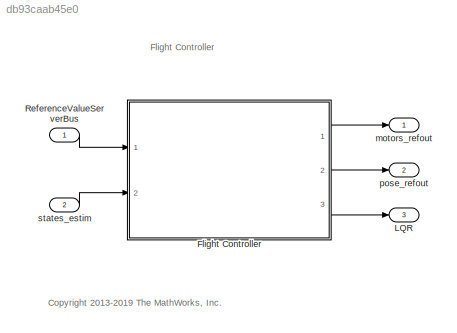
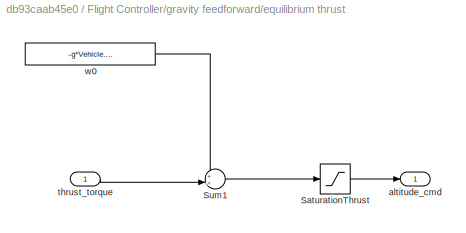
MODEL slx_db93caab45e0
KIND model
CONFIG AbsTol = auto
CONFIG EnableMultiTasking = on
CONFIG FixedStep = Ts
CONFIG MaxStep = auto
CONFIG MinStep = auto
CONFIG RelTol = 1e-3
CONFIG SampleTimeConstraint = Unconstrained
CONFIG Solver = ode3
CONFIG SolverName = ode3
CONFIG StartTime = 0
CONFIG StopTime = TFinal
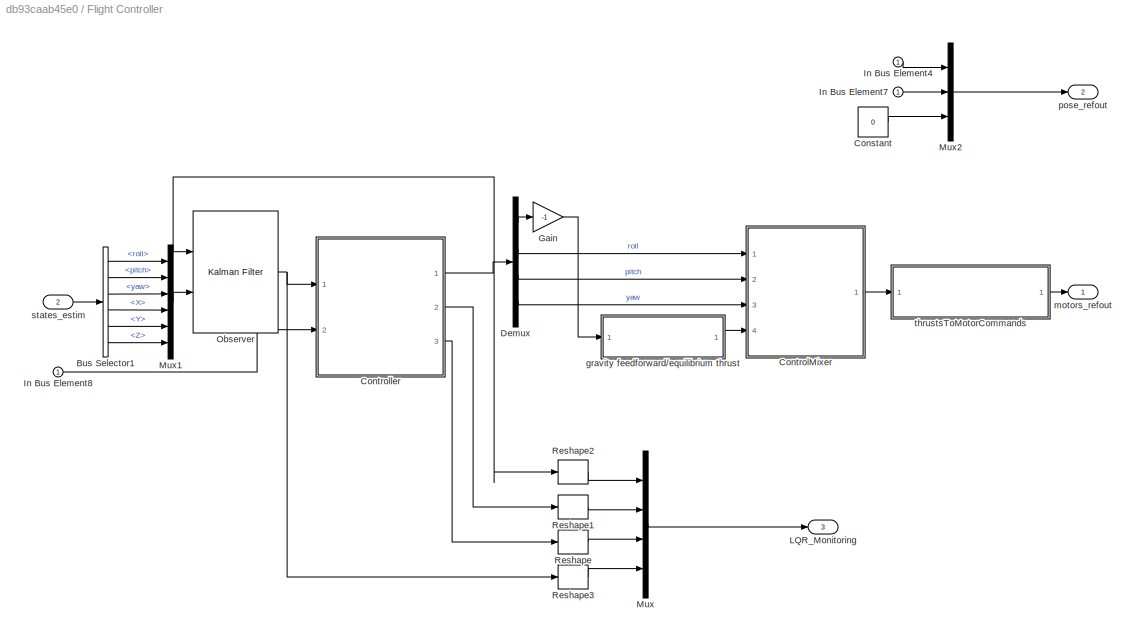
BLOCK [SubSystem] Flight Controller
  Ports = [2, 3]
  RequestExecContextInheritance = off
BLOCK [BusSelector] Flight Controller/Bus Selector1
  OutputAsBus = off
  OutputSignals = roll,pitch,yaw,X,Y,Z
  Ports = [1, 6]
BLOCK [Constant] Flight Controller/Constant
  OutDataTypeStr = single
  Value = 0
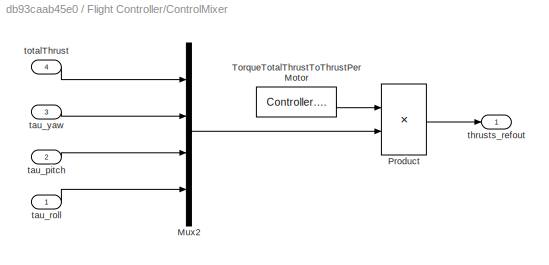
BLOCK [SubSystem] Flight Controller/ControlMixer
  Ports = [4, 1]
  RequestExecContextInheritance = off
BLOCK [Mux] Flight Controller/ControlMixer/Mux2
  DisplayOption = bar
  Ports = [4, 1]
BLOCK [Product] Flight Controller/ControlMixer/Product
  InputSameDT = off
  Multiplication = Matrix(*)
  OutDataTypeStr = Inherit: Inherit via internal rule
  Ports = [2, 1]
  SaturateOnIntegerOverflow = off
BLOCK [Constant] Flight Controller/ControlMixer/TorqueTotalThrustToThrustPerMotor
  OutDataTypeStr = single
  Value = Controller.Q2Ts
BLOCK [Inport] Flight Controller/ControlMixer/tau_pitch
  IconDisplay = Port number
  Port = 2
BLOCK [Inport] Flight Controller/ControlMixer/tau_roll
  IconDisplay = Port number
BLOCK [Inport] Flight Controller/ControlMixer/tau_yaw
  IconDisplay = Port number
  Port = 3
BLOCK [Outport] Flight Controller/ControlMixer/thrusts_refout
  IconDisplay = Port number
  VectorParamsAs1DForOutWhenUnconnected = off
BLOCK [Inport] Flight Controller/ControlMixer/totalThrust
  IconDisplay = Port number
  Port = 4
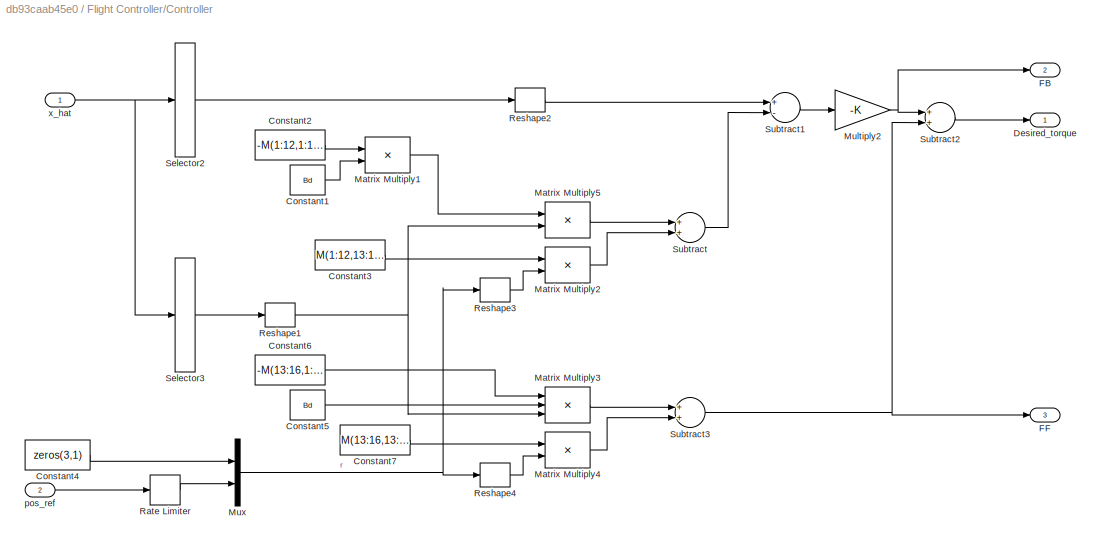
BLOCK [SubSystem] Flight Controller/Controller
  Ports = [2, 3]
  RequestExecContextInheritance = off
BLOCK [Constant] Flight Controller/Controller/Constant1
  OutDataTypeStr = single
  Value = Bd
BLOCK [Constant] Flight Controller/Controller/Constant2
  OutDataTypeStr = single
  Value = -M(1:12,1:12)
BLOCK [Constant] Flight Controller/Controller/Constant3
  OutDataTypeStr = single
  Value = M(1:12,13:18)
BLOCK [Constant] Flight Controller/Controller/Constant4
  OutDataTypeStr = single
  Value = zeros(3,1)
BLOCK [Constant] Flight Controller/Controller/Constant5
  OutDataTypeStr = single
  Value = Bd
BLOCK [Constant] Flight Controller/Controller/Constant6
  OutDataTypeStr = single
  Value = -M(13:16,1:12)
BLOCK [Constant] Flight Controller/Controller/Constant7
  OutDataTypeStr = single
  Value = M(13:16,13:18)
BLOCK [Outport] Flight Controller/Controller/Desired_torque
  IconDisplay = Port number
BLOCK [Outport] Flight Controller/Controller/FB
  IconDisplay = Port number
  Port = 2
BLOCK [Outport] Flight Controller/Controller/FF
  IconDisplay = Port number
  Port = 3
BLOCK [Product] Flight Controller/Controller/Matrix Multiply1
  InputSameDT = off
  Multiplication = Matrix(*)
  OutDataTypeStr = Inherit: Inherit via internal rule
  Ports = [2, 1]
  RndMeth = Floor
  SaturateOnIntegerOverflow = off
BLOCK [Product] Flight Controller/Controller/Matrix Multiply2
  InputSameDT = off
  Multiplication = Matrix(*)
  OutDataTypeStr = Inherit: Inherit via internal rule
  Ports = [2, 1]
  RndMeth = Floor
  SaturateOnIntegerOverflow = off
BLOCK [Product] Flight Controller/Controller/Matrix Multiply3
  InputSameDT = off
  Inputs = 3
  Multiplication = Matrix(*)
  OutDataTypeStr = Inherit: Inherit via internal rule
  Ports = [3, 1]
  RndMeth = Floor
  SaturateOnIntegerOverflow = off
BLOCK [Product] Flight Controller/Controller/Matrix Multiply4
  InputSameDT = off
  Multiplication = Matrix(*)
  OutDataTypeStr = Inherit: Inherit via internal rule
  Ports = [2, 1]
  RndMeth = Floor
  SaturateOnIntegerOverflow = off
BLOCK [Product] Flight Controller/Controller/Matrix Multiply5
  InputSameDT = off
  Multiplication = Matrix(*)
  OutDataTypeStr = Inherit: Inherit via internal rule
  Ports = [2, 1]
  RndMeth = Floor
  SaturateOnIntegerOverflow = off
BLOCK [Gain] Flight Controller/Controller/Multiply2
  Gain = -K
  Multiplication = Matrix(K*u)
  OutDataTypeStr = Inherit: Inherit via internal rule
  ParamDataTypeStr = Inherit: Inherit via internal rule
  SaturateOnIntegerOverflow = off
BLOCK [Mux] Flight Controller/Controller/Mux
  DisplayOption = bar
  Inputs = 2
  Ports = [2, 1]
BLOCK [RateLimiter] Flight Controller/Controller/Rate Limiter
  FallingSlewLimit = -2
  RisingSlewLimit = 2
  SampleTimeMode = inherited
BLOCK [Reshape] Flight Controller/Controller/Reshape1
  OutputDimensionality = Column vector (2-D)
  Ports = [1, 1]
BLOCK [Reshape] Flight Controller/Controller/Reshape2
  OutputDimensionality = Column vector (2-D)
  Ports = [1, 1]
BLOCK [Reshape] Flight Controller/Controller/Reshape3
  OutputDimensionality = Column vector (2-D)
  Ports = [1, 1]
BLOCK [Reshape] Flight Controller/Controller/Reshape4
  OutputDimensionality = Column vector (2-D)
  Ports = [1, 1]
BLOCK [Selector] Flight Controller/Controller/Selector2
  IndexOptions = Index vector (dialog)
  Indices = [1:12]
  InputPortWidth = 18
  OutputSizes = 1
  Ports = [1, 1]
BLOCK [Selector] Flight Controller/Controller/Selector3
  IndexOptions = Index vector (dialog)
  Indices = [13:18]
  InputPortWidth = 18
  OutputSizes = 1
  Ports = [1, 1]
BLOCK [Sum] Flight Controller/Controller/Subtract
  InputSameDT = off
  OutDataTypeStr = Inherit: Inherit via internal rule
  Ports = [2, 1]
  SaturateOnIntegerOverflow = off
BLOCK [Sum] Flight Controller/Controller/Subtract1
  InputSameDT = off
  Inputs = +-
  OutDataTypeStr = Inherit: Inherit via internal rule
  Ports = [2, 1]
  SaturateOnIntegerOverflow = off
BLOCK [Sum] Flight Controller/Controller/Subtract2
  InputSameDT = off
  OutDataTypeStr = Inherit: Inherit via internal rule
  Ports = [2, 1]
  SaturateOnIntegerOverflow = off
BLOCK [Sum] Flight Controller/Controller/Subtract3
  InputSameDT = off
  OutDataTypeStr = Inherit: Inherit via internal rule
  Ports = [2, 1]
  SaturateOnIntegerOverflow = off
BLOCK [Inport] Flight Controller/Controller/pos_ref
  IconDisplay = Port number
  Port = 2
BLOCK [Inport] Flight Controller/Controller/x_hat
  IconDisplay = Port number
BLOCK [Demux] Flight Controller/Demux
  DisplayOption = bar
  Ports = [1, 4]
BLOCK [Gain] Flight Controller/Gain
  Gain = -1
  OutDataTypeStr = Inherit: Inherit via internal rule
  ParamDataTypeStr = Inherit: Inherit via internal rule
  SaturateOnIntegerOverflow = off
BLOCK [Inport] Flight Controller/In Bus Element4
  IconDisplay = Port number
BLOCK [Inport] Flight Controller/In Bus Element7
  IconDisplay = Port number
BLOCK [Inport] Flight Controller/In Bus Element8
  IconDisplay = Port number
BLOCK [Outport] Flight Controller/LQR_Monitoring
  IconDisplay = Port number
  Port = 3
BLOCK [Mux] Flight Controller/Mux
  DisplayOption = bar
  Ports = [4, 1]
BLOCK [Mux] Flight Controller/Mux1
  DisplayOption = bar
  Inputs = 6
  Ports = [6, 1]
BLOCK [Mux] Flight Controller/Mux2
  DisplayOption = bar
  Inputs = 3
  Ports = [3, 1]
BLOCK [Reference] Flight Controller/Observer  REF=ctrlSharedLib/Kalman Filter
  Ports = [2, 1]
  SourceBlock = ctrlSharedLib/Kalman Filter
  SourceProductBaseCode = CT
  SourceProductName = Control System Toolbox
  SourceType = ctrlKalmanFilter
BLOCK [Reshape] Flight Controller/Reshape
  Ports = [1, 1]
BLOCK [Reshape] Flight Controller/Reshape1
  Ports = [1, 1]
BLOCK [Reshape] Flight Controller/Reshape2
  Ports = [1, 1]
BLOCK [Reshape] Flight Controller/Reshape3
  Ports = [1, 1]
BLOCK [SubSystem] Flight Controller/gravity feedforward//equilibrium thrust
  Ports = [1, 1]
  RequestExecContextInheritance = off
BLOCK [Saturate] Flight Controller/gravity feedforward//equilibrium thrust/SaturationThrust
  InputPortMap = u0
  LowerLimit = -4*Controller.totalThrustMaxRelative*Controller.motorsThrustPerMotorMax
  OutDataTypeStr = single
  Ports = [1, 1]
  UpperLimit = 4*Controller.totalThrustMaxRelative*Controller.motorsThrustPerMotorMax
BLOCK [Sum] Flight Controller/gravity feedforward//equilibrium thrust/Sum1
  AccumDataTypeStr = single
  IconShape = round
  InputSameDT = off
  Inputs = ++|
  OutDataTypeStr = single
  Ports = [2, 1]
BLOCK [Outport] Flight Controller/gravity feedforward//equilibrium thrust/altitude_cmd
  IconDisplay = Port number
  VectorParamsAs1DForOutWhenUnconnected = off
BLOCK [Inport] Flight Controller/gravity feedforward//equilibrium thrust/thrust_torque
  IconDisplay = Port number
BLOCK [Constant] Flight Controller/gravity feedforward//equilibrium thrust/w0
  OutDataTypeStr = single
  SampleTime = Ts
  Value = -g*Vehicle.Airframe.mass
BLOCK [Outport] Flight Controller/motors_refout
  IconDisplay = Port number
  VectorParamsAs1DForOutWhenUnconnected = off
BLOCK [Outport] Flight Controller/pose_refout
  IconDisplay = Port number
  Port = 2
  VectorParamsAs1DForOutWhenUnconnected = off
BLOCK [Inport] Flight Controller/states_estim
  IconDisplay = Port number
  Port = 2
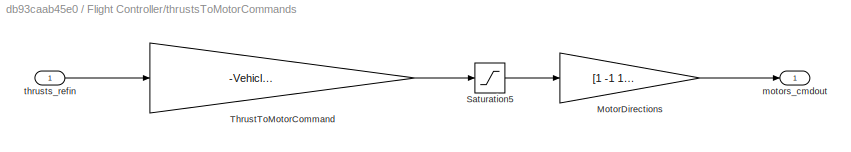
BLOCK [SubSystem] Flight Controller/thrustsToMotorCommands
  Ports = [1, 1]
  RequestExecContextInheritance = off
BLOCK [Gain] Flight Controller/thrustsToMotorCommands/MotorDirections
  Gain = [1 -1 1 -1]
  OutDataTypeStr = Inherit: Inherit via internal rule
  ParamDataTypeStr = Inherit: Inherit via internal rule
  SaturateOnIntegerOverflow = off
BLOCK [Saturate] Flight Controller/thrustsToMotorCommands/Saturation5
  InputPortMap = u0
  LowerLimit = Vehicle.Motor.minLimit
  Ports = [1, 1]
  UpperLimit = Vehicle.Motor.maxLimit
BLOCK [Gain] Flight Controller/thrustsToMotorCommands/ThrustToMotorCommand
  Gain = -Vehicle.Motor.thrustToMotorCommand
  OutDataTypeStr = Inherit: Inherit via internal rule
  ParamDataTypeStr = Inherit: Inherit via internal rule
  SaturateOnIntegerOverflow = off
BLOCK [Outport] Flight Controller/thrustsToMotorCommands/motors_cmdout
  IconDisplay = Port number
  VectorParamsAs1DForOutWhenUnconnected = off
BLOCK [Inport] Flight Controller/thrustsToMotorCommands/thrusts_refin
  IconDisplay = Port number
BLOCK [Outport] LQR
  IconDisplay = Port number
  Port = 3
BLOCK [Inport] ReferenceValueServerBus
  BusOutputAsStruct = on
  IconDisplay = Port number
  OutDataTypeStr = Bus: CommandBus
BLOCK [Outport] motors_refout
  IconDisplay = Port number
  VectorParamsAs1DForOutWhenUnconnected = off
BLOCK [Outport] pose_refout
  IconDisplay = Port number
  Port = 2
  VectorParamsAs1DForOutWhenUnconnected = off
BLOCK [Inport] states_estim
  BusOutputAsStruct = on
  IconDisplay = Port number
  OutDataTypeStr = Bus: statesEstim_t
  Port = 2
ANNOTATION (root): <copyright redacted>
ANNOTATION (root): Flight Controller
LINE Flight Controller/Bus Selector1:1 -> Flight Controller/Mux1:1
LINE Flight Controller/Bus Selector1:2 -> Flight Controller/Mux1:2
LINE Flight Controller/Bus Selector1:3 -> Flight Controller/Mux1:3
LINE Flight Controller/Bus Selector1:4 -> Flight Controller/Mux1:4
LINE Flight Controller/Bus Selector1:5 -> Flight Controller/Mux1:5
LINE Flight Controller/Bus Selector1:6 -> Flight Controller/Mux1:6
LINE Flight Controller/Constant:1 -> Flight Controller/Mux2:3
LINE Flight Controller/ControlMixer/Mux2:1 -> Flight Controller/ControlMixer/Product:2
LINE Flight Controller/ControlMixer/Product:1 -> Flight Controller/ControlMixer/thrusts_refout:1
LINE Flight Controller/ControlMixer/TorqueTotalThrustToThrustPerMotor:1 -> Flight Controller/ControlMixer/Product:1
LINE Flight Controller/ControlMixer/tau_pitch:1 -> Flight Controller/ControlMixer/Mux2:3
LINE Flight Controller/ControlMixer/tau_roll:1 -> Flight Controller/ControlMixer/Mux2:4
LINE Flight Controller/ControlMixer/tau_yaw:1 -> Flight Controller/ControlMixer/Mux2:2
LINE Flight Controller/ControlMixer/totalThrust:1 -> Flight Controller/ControlMixer/Mux2:1
LINE Flight Controller/ControlMixer:1 -> Flight Controller/thrustsToMotorCommands:1
LINE Flight Controller/Controller/Constant1:1 -> Flight Controller/Controller/Matrix Multiply1:2
LINE Flight Controller/Controller/Constant2:1 -> Flight Controller/Controller/Matrix Multiply1:1
LINE Flight Controller/Controller/Constant3:1 -> Flight Controller/Controller/Matrix Multiply2:1
LINE Flight Controller/Controller/Constant4:1 -> Flight Controller/Controller/Mux:1
LINE Flight Controller/Controller/Constant5:1 -> Flight Controller/Controller/Matrix Multiply3:2
LINE Flight Controller/Controller/Constant6:1 -> Flight Controller/Controller/Matrix Multiply3:1
LINE Flight Controller/Controller/Constant7:1 -> Flight Controller/Controller/Matrix Multiply4:1
LINE Flight Controller/Controller/Matrix Multiply1:1 -> Flight Controller/Controller/Matrix Multiply5:1
LINE Flight Controller/Controller/Matrix Multiply2:1 -> Flight Controller/Controller/Subtract:2
LINE Flight Controller/Controller/Matrix Multiply3:1 -> Flight Controller/Controller/Subtract3:1
LINE Flight Controller/Controller/Matrix Multiply4:1 -> Flight Controller/Controller/Subtract3:2
LINE Flight Controller/Controller/Matrix Multiply5:1 -> Flight Controller/Controller/Subtract:1
NET Flight Controller/Controller/Multiply2:1 -> Flight Controller/Controller/FB:1, Flight Controller/Controller/Subtract2:1
NET Flight Controller/Controller/Mux:1 -> Flight Controller/Controller/Reshape3:1, Flight Controller/Controller/Reshape4:1
LINE Flight Controller/Controller/Rate Limiter:1 -> Flight Controller/Controller/Mux:2
NET Flight Controller/Controller/Reshape1:1 -> Flight Controller/Controller/Matrix Multiply3:3, Flight Controller/Controller/Matrix Multiply5:2
LINE Flight Controller/Controller/Reshape2:1 -> Flight Controller/Controller/Subtract1:1
LINE Flight Controller/Controller/Reshape3:1 -> Flight Controller/Controller/Matrix Multiply2:2
LINE Flight Controller/Controller/Reshape4:1 -> Flight Controller/Controller/Matrix Multiply4:2
LINE Flight Controller/Controller/Selector2:1 -> Flight Controller/Controller/Reshape2:1
LINE Flight Controller/Controller/Selector3:1 -> Flight Controller/Controller/Reshape1:1
LINE Flight Controller/Controller/Subtract1:1 -> Flight Controller/Controller/Multiply2:1
LINE Flight Controller/Controller/Subtract2:1 -> Flight Controller/Controller/Desired_torque:1
NET Flight Controller/Controller/Subtract3:1 -> Flight Controller/Controller/FF:1, Flight Controller/Controller/Subtract2:2
LINE Flight Controller/Controller/Subtract:1 -> Flight Controller/Controller/Subtract1:2
LINE Flight Controller/Controller/pos_ref:1 -> Flight Controller/Controller/Rate Limiter:1
NET Flight Controller/Controller/x_hat:1 -> Flight Controller/Controller/Selector2:1, Flight Controller/Controller/Selector3:1
NET Flight Controller/Controller:1 -> Flight Controller/Demux:1, Flight Controller/Observer:1, Flight Controller/Reshape2:1
LINE Flight Controller/Controller:2 -> Flight Controller/Reshape1:1
LINE Flight Controller/Controller:3 -> Flight Controller/Reshape:1
LINE Flight Controller/Demux:1 -> Flight Controller/Gain:1
LINE Flight Controller/Demux:2 -> Flight Controller/ControlMixer:1
LINE Flight Controller/Demux:3 -> Flight Controller/ControlMixer:2
LINE Flight Controller/Demux:4 -> Flight Controller/ControlMixer:3
LINE Flight Controller/Gain:1 -> Flight Controller/gravity feedforward//equilibrium thrust:1
LINE Flight Controller/In Bus Element4:1 -> Flight Controller/Mux2:1
LINE Flight Controller/In Bus Element7:1 -> Flight Controller/Mux2:2
LINE Flight Controller/In Bus Element8:1 -> Flight Controller/Controller:2
LINE Flight Controller/Mux1:1 -> Flight Controller/Observer:2
LINE Flight Controller/Mux2:1 -> Flight Controller/pose_refout:1
LINE Flight Controller/Mux:1 -> Flight Controller/LQR_Monitoring:1
NET Flight Controller/Observer:1 -> Flight Controller/Controller:1, Flight Controller/Reshape3:1
LINE Flight Controller/Reshape1:1 -> Flight Controller/Mux:2
LINE Flight Controller/Reshape2:1 -> Flight Controller/Mux:1
LINE Flight Controller/Reshape3:1 -> Flight Controller/Mux:4
LINE Flight Controller/Reshape:1 -> Flight Controller/Mux:3
LINE Flight Controller/gravity feedforward//equilibrium thrust/SaturationThrust:1 -> Flight Controller/gravity feedforward//equilibrium thrust/altitude_cmd:1
LINE Flight Controller/gravity feedforward//equilibrium thrust/Sum1:1 -> Flight Controller/gravity feedforward//equilibrium thrust/SaturationThrust:1
LINE Flight Controller/gravity feedforward//equilibrium thrust/thrust_torque:1 -> Flight Controller/gravity feedforward//equilibrium thrust/Sum1:2
LINE Flight Controller/gravity feedforward//equilibrium thrust/w0:1 -> Flight Controller/gravity feedforward//equilibrium thrust/Sum1:1
LINE Flight Controller/gravity feedforward//equilibrium thrust:1 -> Flight Controller/ControlMixer:4
LINE Flight Controller/states_estim:1 -> Flight Controller/Bus Selector1:1
LINE Flight Controller/thrustsToMotorCommands/MotorDirections:1 -> Flight Controller/thrustsToMotorCommands/motors_cmdout:1
LINE Flight Controller/thrustsToMotorCommands/Saturation5:1 -> Flight Controller/thrustsToMotorCommands/MotorDirections:1
LINE Flight Controller/thrustsToMotorCommands/ThrustToMotorCommand:1 -> Flight Controller/thrustsToMotorCommands/Saturation5:1
LINE Flight Controller/thrustsToMotorCommands/thrusts_refin:1 -> Flight Controller/thrustsToMotorCommands/ThrustToMotorCommand:1
LINE Flight Controller/thrustsToMotorCommands:1 -> Flight Controller/motors_refout:1
LINE Flight Controller:1 -> motors_refout:1
LINE Flight Controller:2 -> pose_refout:1
LINE Flight Controller:3 -> LQR:1
LINE ReferenceValueServerBus:1 -> Flight Controller:1
LINE states_estim:1 -> Flight Controller:2
note: NET lines group one-source signal fan-out (src -> all destinations, sorted); 1:1 wires keep LINE
